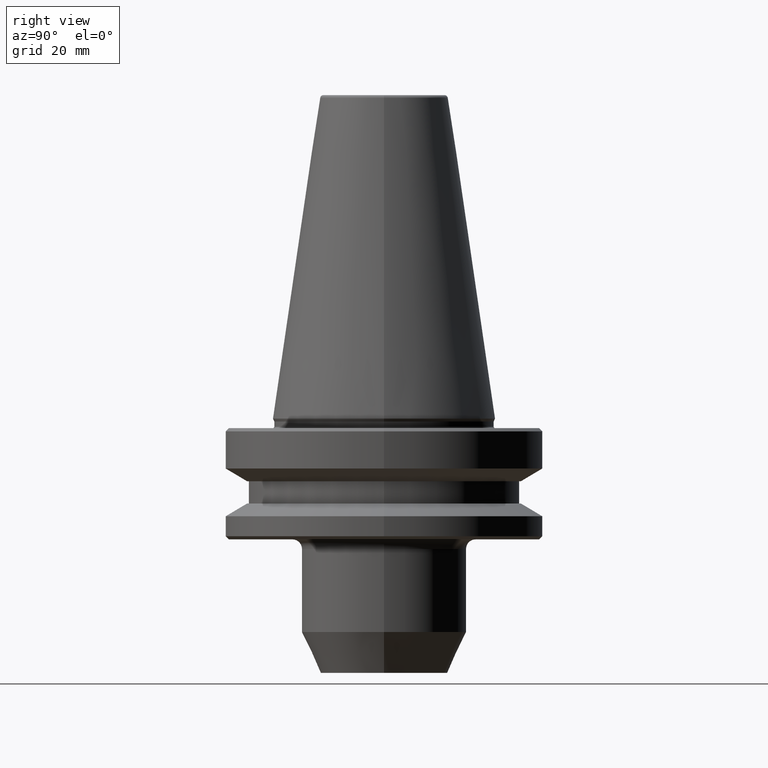
[diagram: clean part render]
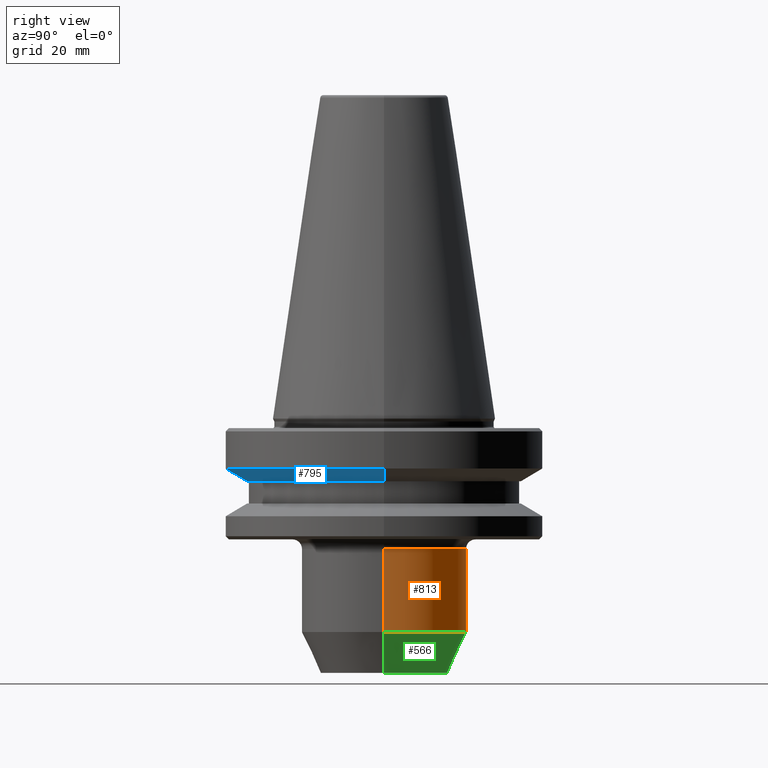
[diagram: same view with three faces highlighted in distinct colors, each labeled with its STEP entity id]
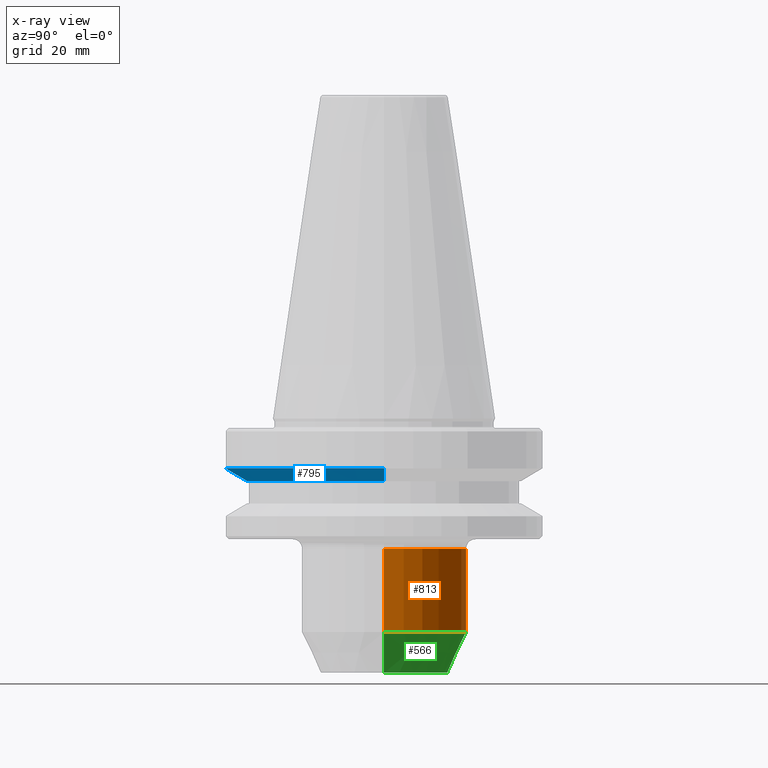
[diagram: x-ray of the same camera — body ghosted, the three highlighted faces saturated]
A machine part, right view with three faces highlighted in distinct colors.
The next image is the same camera in x-ray (body ghosted, the three faces saturated) — at least one of them is partly hidden behind the body in this view.
Their STEP definitions:

[orange] entity #813 — the highlighted cylindrical surface (partial cylindrical patch) has radius 26 mm, axis along (-0, -0, 1).
#11 = EDGE_CURVE ( 'NONE', #852, #423, #268, .T. ) ;
#23 = ORIENTED_EDGE ( 'NONE', *, *, #85, .F. ) ;
#27 = CARTESIAN_POINT ( 'NONE',  ( 25.99999999999769100, 0.0000000000000000000, -41.00000000000194000 ) ) ;
#31 = ORIENTED_EDGE ( 'NONE', *, *, #290, .T. ) ;
#56 = VECTOR ( 'NONE', #759, 1000.000000000000000 ) ;
#85 = EDGE_CURVE ( 'NONE', #423, #772, #201, .T. ) ;
#95 = DIRECTION ( 'NONE',  ( -0.0000000000000000000, -0.0000000000000000000, 1.000000000000000000 ) ) ;
#161 = DIRECTION ( 'NONE',  ( 1.000000000000000000, 0.0000000000000000000, 0.0000000000000000000 ) ) ;
#162 = AXIS2_PLACEMENT_3D ( 'NONE', #348, #246, #649 ) ;
#201 = CIRCLE ( 'NONE', #911, 25.99999999999769100 ) ;
#233 = DIRECTION ( 'NONE',  ( -0.0000000000000000000, -0.0000000000000000000, 1.000000000000000000 ) ) ;
#246 = DIRECTION ( 'NONE',  ( -0.0000000000000000000, -0.0000000000000000000, 1.000000000000000000 ) ) ;
#268 = LINE ( 'NONE', #834, #56 ) ;
#290 = EDGE_CURVE ( 'NONE', #852, #368, #584, .T. ) ;
#337 = ORIENTED_EDGE ( 'NONE', *, *, #11, .F. ) ;
#343 = EDGE_CURVE ( 'NONE', #368, #772, #524, .T. ) ;
#348 = CARTESIAN_POINT ( 'NONE',  ( 0.0000000000000000000, 0.0000000000000000000, -67.13295847694412500 ) ) ;
#368 = VERTEX_POINT ( 'NONE', #878 ) ;
#403 = DIRECTION ( 'NONE',  ( 1.000000000000000000, 0.0000000000000000000, 0.0000000000000000000 ) ) ;
#423 = VERTEX_POINT ( 'NONE', #27 ) ;
#426 = CARTESIAN_POINT ( 'NONE',  ( 0.0000000000000000000, 0.0000000000000000000, -41.00000000000194000 ) ) ;
#439 = FACE_OUTER_BOUND ( 'NONE', #740, .T. ) ;
#444 = ORIENTED_EDGE ( 'NONE', *, *, #343, .T. ) ;
#524 = LINE ( 'NONE', #739, #731 ) ;
#546 = CARTESIAN_POINT ( 'NONE',  ( 25.99999999999769100, 0.0000000000000000000, -67.13295847694412500 ) ) ;
#564 = AXIS2_PLACEMENT_3D ( 'NONE', #970, #932, #161 ) ;
#584 = CIRCLE ( 'NONE', #162, 25.99999999999769100 ) ;
#610 = CYLINDRICAL_SURFACE ( 'NONE', #564, 25.99999999999769100 ) ;
#649 = DIRECTION ( 'NONE',  ( 1.000000000000000000, 0.0000000000000000000, 0.0000000000000000000 ) ) ;
#719 = CARTESIAN_POINT ( 'NONE',  ( -25.99999999999769100, 3.184081677782835400E-015, -41.00000000000194000 ) ) ;
#731 = VECTOR ( 'NONE', #95, 1000.000000000000000 ) ;
#739 = CARTESIAN_POINT ( 'NONE',  ( -25.99999999999769100, 3.184081677782835400E-015, 105.9391094017344400 ) ) ;
#740 = EDGE_LOOP ( 'NONE', ( #31, #444, #23, #337 ) ) ;
#759 = DIRECTION ( 'NONE',  ( -0.0000000000000000000, -0.0000000000000000000, 1.000000000000000000 ) ) ;
#772 = VERTEX_POINT ( 'NONE', #719 ) ;
#813 = ADVANCED_FACE ( 'NONE', ( #439 ), #610, .T. ) ;
#834 = CARTESIAN_POINT ( 'NONE',  ( 25.99999999999769100, 0.0000000000000000000, 105.9391094017344400 ) ) ;
#852 = VERTEX_POINT ( 'NONE', #546 ) ;
#878 = CARTESIAN_POINT ( 'NONE',  ( -25.99999999999769100, 3.184081677782835400E-015, -67.13295847694412500 ) ) ;
#911 = AXIS2_PLACEMENT_3D ( 'NONE', #426, #233, #403 ) ;
#932 = DIRECTION ( 'NONE',  ( -0.0000000000000000000, -0.0000000000000000000, 1.000000000000000000 ) ) ;
#970 = CARTESIAN_POINT ( 'NONE',  ( 0.0000000000000000000, 0.0000000000000000000, 105.9391094017344400 ) ) ;

[blue] entity #795 — the highlighted conical surface has half-angle 60 deg.
#103 = LINE ( 'NONE', #553, #611 ) ;
#111 = ORIENTED_EDGE ( 'NONE', *, *, #446, .T. ) ;
#136 = EDGE_CURVE ( 'NONE', #422, #152, #729, .T. ) ;
#148 = DIRECTION ( 'NONE',  ( -0.8660254037844377100, 1.060575238724905700E-016, 0.5000000000000017800 ) ) ;
#152 = VERTEX_POINT ( 'NONE', #692 ) ;
#167 = DIRECTION ( 'NONE',  ( -0.0000000000000000000, -0.0000000000000000000, 1.000000000000000000 ) ) ;
#186 = DIRECTION ( 'NONE',  ( -0.0000000000000000000, -0.0000000000000000000, 1.000000000000000000 ) ) ;
#189 = VERTEX_POINT ( 'NONE', #518 ) ;
#228 = EDGE_LOOP ( 'NONE', ( #471, #789, #111, #371 ) ) ;
#251 = CIRCLE ( 'NONE', #325, 49.99999999999970900 ) ;
#325 = AXIS2_PLACEMENT_3D ( 'NONE', #520, #899, #659 ) ;
#335 = DIRECTION ( 'NONE',  ( 0.8660254037844377100, 0.0000000000000000000, 0.5000000000000017800 ) ) ;
#355 = CARTESIAN_POINT ( 'NONE',  ( -43.07217782649153300, 5.274820470751845900E-015, -19.70000000000073100 ) ) ;
#371 = ORIENTED_EDGE ( 'NONE', *, *, #822, .F. ) ;
#422 = VERTEX_POINT ( 'NONE', #967 ) ;
#446 = EDGE_CURVE ( 'NONE', #152, #549, #103, .T. ) ;
#471 = ORIENTED_EDGE ( 'NONE', *, *, #868, .F. ) ;
#490 = DIRECTION ( 'NONE',  ( 1.000000000000000000, 0.0000000000000000000, 0.0000000000000000000 ) ) ;
#499 = AXIS2_PLACEMENT_3D ( 'NONE', #699, #186, #490 ) ;
#518 = CARTESIAN_POINT ( 'NONE',  ( -49.99999999999970900, 6.123233995736730600E-015, -15.70022000322790500 ) ) ;
#520 = CARTESIAN_POINT ( 'NONE',  ( 0.0000000000000000000, 0.0000000000000000000, -15.70022000322790500 ) ) ;
#537 = AXIS2_PLACEMENT_3D ( 'NONE', #641, #167, #614 ) ;
#549 = VERTEX_POINT ( 'NONE', #947 ) ;
#553 = CARTESIAN_POINT ( 'NONE',  ( 43.07217782649153300, 0.0000000000000000000, -19.70000000000073100 ) ) ;
#611 = VECTOR ( 'NONE', #335, 999.9999999999998900 ) ;
#614 = DIRECTION ( 'NONE',  ( 1.000000000000000000, 0.0000000000000000000, 0.0000000000000000000 ) ) ;
#637 = CONICAL_SURFACE ( 'NONE', #537, 43.07217782649153300, 1.047197551196595600 ) ;
#641 = CARTESIAN_POINT ( 'NONE',  ( 0.0000000000000000000, 0.0000000000000000000, -19.70000000000073100 ) ) ;
#659 = DIRECTION ( 'NONE',  ( 1.000000000000000000, 0.0000000000000000000, 0.0000000000000000000 ) ) ;
#692 = CARTESIAN_POINT ( 'NONE',  ( 43.07217782649153300, 0.0000000000000000000, -19.70000000000073100 ) ) ;
#699 = CARTESIAN_POINT ( 'NONE',  ( 0.0000000000000000000, 0.0000000000000000000, -19.70000000000073100 ) ) ;
#729 = CIRCLE ( 'NONE', #499, 43.07217782649153300 ) ;
#777 = VECTOR ( 'NONE', #148, 999.9999999999998900 ) ;
#789 = ORIENTED_EDGE ( 'NONE', *, *, #136, .T. ) ;
#795 = ADVANCED_FACE ( 'NONE', ( #876 ), #637, .T. ) ;
#822 = EDGE_CURVE ( 'NONE', #189, #549, #251, .T. ) ;
#868 = EDGE_CURVE ( 'NONE', #422, #189, #984, .T. ) ;
#876 = FACE_OUTER_BOUND ( 'NONE', #228, .T. ) ;
#899 = DIRECTION ( 'NONE',  ( -0.0000000000000000000, -0.0000000000000000000, 1.000000000000000000 ) ) ;
#947 = CARTESIAN_POINT ( 'NONE',  ( 49.99999999999970900, 0.0000000000000000000, -15.70022000322790500 ) ) ;
#967 = CARTESIAN_POINT ( 'NONE',  ( -43.07217782649153300, 5.699027233244287800E-015, -19.70000000000073100 ) ) ;
#984 = LINE ( 'NONE', #355, #777 ) ;

[green] entity #566 — the highlighted conical surface has half-angle 25 deg.
#24 = VECTOR ( 'NONE', #86, 1000.000000000000100 ) ;
#86 = DIRECTION ( 'NONE',  ( 0.4226182617406886200, 0.0000000000000000000, 0.9063077870366550400 ) ) ;
#133 = DIRECTION ( 'NONE',  ( 1.000000000000000000, 0.0000000000000000000, 0.0000000000000000000 ) ) ;
#141 = ORIENTED_EDGE ( 'NONE', *, *, #227, .F. ) ;
#162 = AXIS2_PLACEMENT_3D ( 'NONE', #348, #246, #649 ) ;
#215 = LINE ( 'NONE', #545, #24 ) ;
#227 = EDGE_CURVE ( 'NONE', #349, #852, #215, .T. ) ;
#246 = DIRECTION ( 'NONE',  ( -0.0000000000000000000, -0.0000000000000000000, 1.000000000000000000 ) ) ;
#266 = LINE ( 'NONE', #726, #688 ) ;
#267 = CARTESIAN_POINT ( 'NONE',  ( 19.99999999999790700, 0.0000000000000000000, -80.00000000000142100 ) ) ;
#290 = EDGE_CURVE ( 'NONE', #852, #368, #584, .T. ) ;
#298 = FACE_OUTER_BOUND ( 'NONE', #869, .T. ) ;
#300 = ORIENTED_EDGE ( 'NONE', *, *, #902, .T. ) ;
#342 = VERTEX_POINT ( 'NONE', #665 ) ;
#348 = CARTESIAN_POINT ( 'NONE',  ( 0.0000000000000000000, 0.0000000000000000000, -67.13295847694412500 ) ) ;
#349 = VERTEX_POINT ( 'NONE', #267 ) ;
#368 = VERTEX_POINT ( 'NONE', #878 ) ;
#376 = DIRECTION ( 'NONE',  ( -0.4226182617406886200, 5.175581015019525700E-017, 0.9063077870366550400 ) ) ;
#405 = DIRECTION ( 'NONE',  ( 1.000000000000000000, 0.0000000000000000000, 0.0000000000000000000 ) ) ;
#451 = CARTESIAN_POINT ( 'NONE',  ( 0.0000000000000000000, 0.0000000000000000000, -80.00000000000142100 ) ) ;
#467 = ORIENTED_EDGE ( 'NONE', *, *, #765, .T. ) ;
#480 = ORIENTED_EDGE ( 'NONE', *, *, #290, .F. ) ;
#511 = CARTESIAN_POINT ( 'NONE',  ( 0.0000000000000000000, 0.0000000000000000000, -80.00000000000142100 ) ) ;
#545 = CARTESIAN_POINT ( 'NONE',  ( 19.99999999999790700, 0.0000000000000000000, -80.00000000000142100 ) ) ;
#546 = CARTESIAN_POINT ( 'NONE',  ( 25.99999999999769100, 0.0000000000000000000, -67.13295847694412500 ) ) ;
#566 = ADVANCED_FACE ( 'NONE', ( #298 ), #996, .T. ) ;
#584 = CIRCLE ( 'NONE', #162, 25.99999999999769100 ) ;
#649 = DIRECTION ( 'NONE',  ( 1.000000000000000000, 0.0000000000000000000, 0.0000000000000000000 ) ) ;
#665 = CARTESIAN_POINT ( 'NONE',  ( -19.99999999999790700, 2.816687638038642600E-015, -80.00000000000142100 ) ) ;
#685 = AXIS2_PLACEMENT_3D ( 'NONE', #511, #848, #405 ) ;
#688 = VECTOR ( 'NONE', #376, 1000.000000000000100 ) ;
#726 = CARTESIAN_POINT ( 'NONE',  ( -19.99999999999790700, 2.449293598294450100E-015, -80.00000000000142100 ) ) ;
#765 = EDGE_CURVE ( 'NONE', #349, #342, #907, .T. ) ;
#817 = DIRECTION ( 'NONE',  ( -0.0000000000000000000, -0.0000000000000000000, 1.000000000000000000 ) ) ;
#848 = DIRECTION ( 'NONE',  ( -0.0000000000000000000, -0.0000000000000000000, 1.000000000000000000 ) ) ;
#852 = VERTEX_POINT ( 'NONE', #546 ) ;
#869 = EDGE_LOOP ( 'NONE', ( #467, #300, #480, #141 ) ) ;
#878 = CARTESIAN_POINT ( 'NONE',  ( -25.99999999999769100, 3.184081677782835400E-015, -67.13295847694412500 ) ) ;
#880 = AXIS2_PLACEMENT_3D ( 'NONE', #451, #817, #133 ) ;
#902 = EDGE_CURVE ( 'NONE', #342, #368, #266, .T. ) ;
#907 = CIRCLE ( 'NONE', #685, 19.99999999999790700 ) ;
#996 = CONICAL_SURFACE ( 'NONE', #880, 19.99999999999790700, 0.4363323129985704500 ) ;